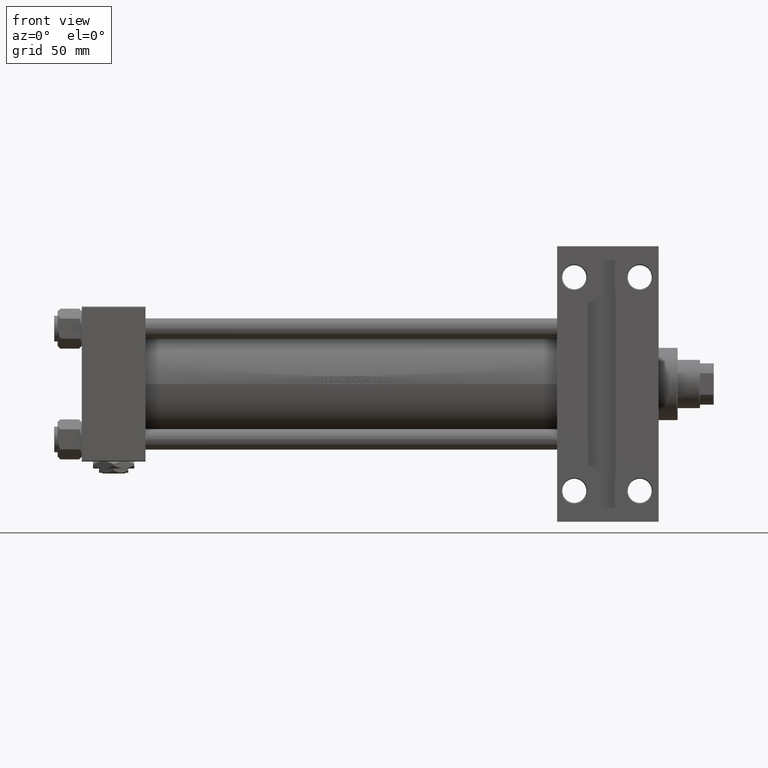
[diagram: clean part render]
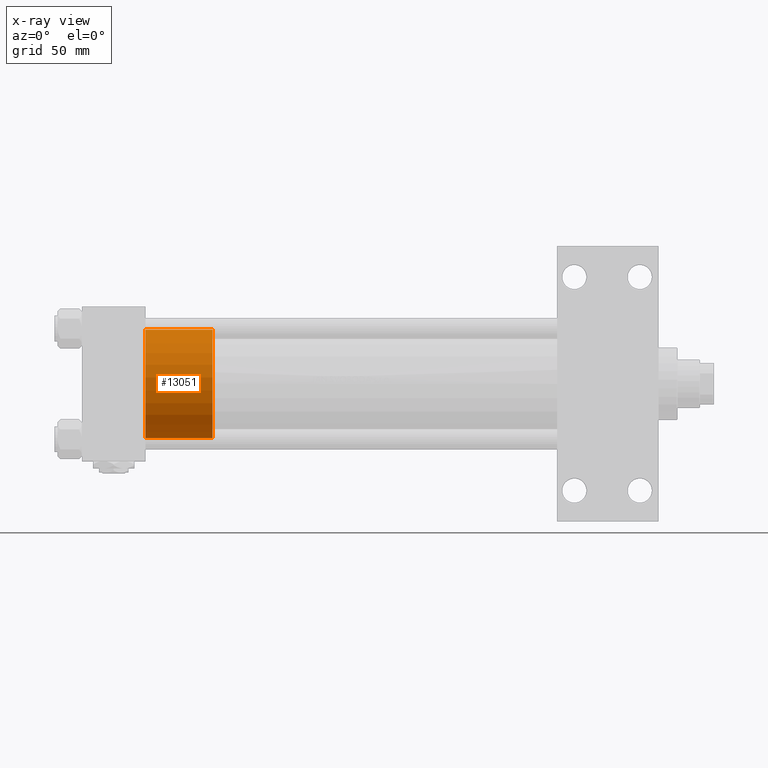
[diagram: x-ray — body ghosted, one internal face saturated and labeled with its STEP entity id]
A machine part, front view, then the same camera in x-ray: the body is ghosted and one INTERNAL B-rep face — a face not visible from any outside direction — is saturated and labeled: STEP entity #13051.
In plain terms, the highlighted cylindrical surface (partial cylindrical patch) has radius 31.5 mm, axis along (-1, 0, 0).
Its self-contained STEP definition (entity closure, byte-faithful):
#452 = CARTESIAN_POINT ( 'NONE',  ( 31.50000000000000000, 3.857637417314162689E-15, 39.00000000000000000 ) ) ;
#1472 = CIRCLE ( 'NONE', #11136, 31.50000000000000000 ) ;
#1819 = VERTEX_POINT ( 'NONE', #16741 ) ;
#1974 = ORIENTED_EDGE ( 'NONE', *, *, #34508, .F. ) ;
#2159 = AXIS2_PLACEMENT_3D ( 'NONE', #14618, #10602, #6833 ) ;
#2234 = DIRECTION ( 'NONE',  ( 1.000000000000000000, 0.000000000000000000, 0.000000000000000000 ) ) ;
#2640 = DIRECTION ( 'NONE',  ( -1.000000000000000000, 0.000000000000000000, 0.000000000000000000 ) ) ;
#3230 = EDGE_LOOP ( 'NONE', ( #33027, #20582, #48882, #1974 ) ) ;
#3249 = VERTEX_POINT ( 'NONE', #452 ) ;
#3873 = EDGE_CURVE ( 'NONE', #5140, #1819, #1472, .T. ) ;
#5140 = VERTEX_POINT ( 'NONE', #11000 ) ;
#6833 = DIRECTION ( 'NONE',  ( 1.000000000000000000, 0.000000000000000000, 0.000000000000000000 ) ) ;
#8812 = VECTOR ( 'NONE', #10383, 1000.000000000000000 ) ;
#10125 = CARTESIAN_POINT ( 'NONE',  ( -31.50000000000000000, 0.000000000000000000, 39.00000000000000000 ) ) ;
#10383 = DIRECTION ( 'NONE',  ( -0.000000000000000000, -0.000000000000000000, -1.000000000000000000 ) ) ;
#10602 = DIRECTION ( 'NONE',  ( 0.000000000000000000, 0.000000000000000000, 1.000000000000000000 ) ) ;
#11000 = CARTESIAN_POINT ( 'NONE',  ( 31.50000000000000000, 3.857637417314162689E-15, 0.000000000000000000 ) ) ;
#11136 = AXIS2_PLACEMENT_3D ( 'NONE', #36685, #37196, #2234 ) ;
#13051 = ADVANCED_FACE ( 'NONE', ( #37591 ), #45133, .T. ) ;
#14243 = DIRECTION ( 'NONE',  ( -0.000000000000000000, -0.000000000000000000, -1.000000000000000000 ) ) ;
#14618 = CARTESIAN_POINT ( 'NONE',  ( 0.000000000000000000, 0.000000000000000000, 39.00000000000000000 ) ) ;
#14702 = CARTESIAN_POINT ( 'NONE',  ( 0.000000000000000000, 0.000000000000000000, 39.00000000000000000 ) ) ;
#16741 = CARTESIAN_POINT ( 'NONE',  ( -31.50000000000000000, 0.000000000000000000, 0.000000000000000000 ) ) ;
#20582 = ORIENTED_EDGE ( 'NONE', *, *, #26113, .T. ) ;
#26113 = EDGE_CURVE ( 'NONE', #3249, #5140, #33843, .T. ) ;
#26904 = EDGE_CURVE ( 'NONE', #3249, #49517, #47926, .T. ) ;
#30700 = AXIS2_PLACEMENT_3D ( 'NONE', #14702, #48407, #2640 ) ;
#33027 = ORIENTED_EDGE ( 'NONE', *, *, #26904, .F. ) ;
#33843 = LINE ( 'NONE', #45417, #45487 ) ;
#34508 = EDGE_CURVE ( 'NONE', #49517, #1819, #44580, .T. ) ;
#36685 = CARTESIAN_POINT ( 'NONE',  ( 0.000000000000000000, 0.000000000000000000, 0.000000000000000000 ) ) ;
#37196 = DIRECTION ( 'NONE',  ( 0.000000000000000000, 0.000000000000000000, 1.000000000000000000 ) ) ;
#37591 = FACE_OUTER_BOUND ( 'NONE', #3230, .T. ) ;
#38562 = CARTESIAN_POINT ( 'NONE',  ( -31.50000000000000000, 0.000000000000000000, 39.00000000000000000 ) ) ;
#44580 = LINE ( 'NONE', #10125, #8812 ) ;
#45133 = CYLINDRICAL_SURFACE ( 'NONE', #30700, 31.50000000000000000 ) ;
#45417 = CARTESIAN_POINT ( 'NONE',  ( 31.50000000000000000, 3.857637417314162689E-15, 39.00000000000000000 ) ) ;
#45487 = VECTOR ( 'NONE', #14243, 1000.000000000000000 ) ;
#47926 = CIRCLE ( 'NONE', #2159, 31.50000000000000000 ) ;
#48407 = DIRECTION ( 'NONE',  ( -0.000000000000000000, -0.000000000000000000, -1.000000000000000000 ) ) ;
#48882 = ORIENTED_EDGE ( 'NONE', *, *, #3873, .T. ) ;
#49517 = VERTEX_POINT ( 'NONE', #38562 ) ;